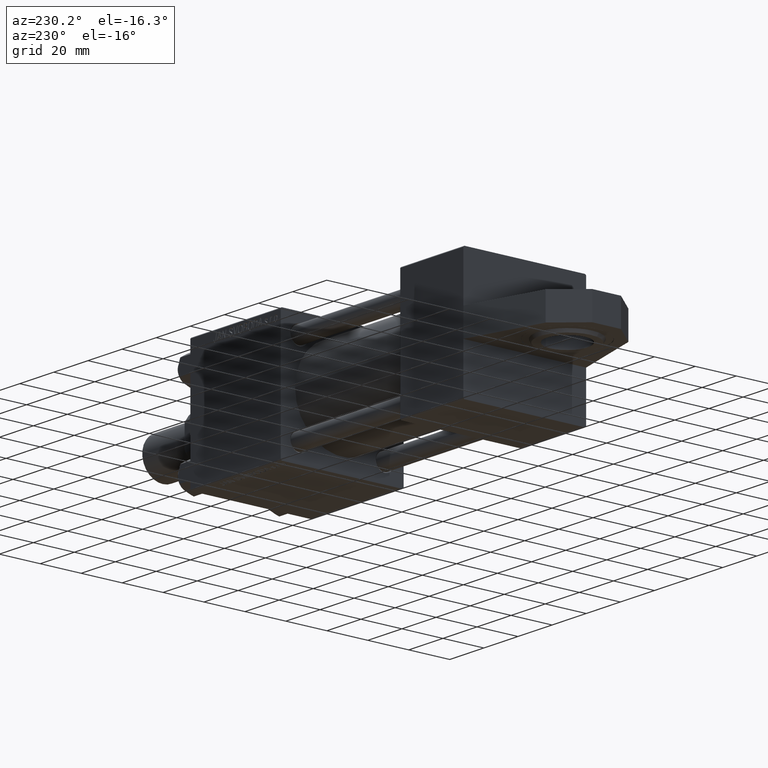
[diagram: clean part render]
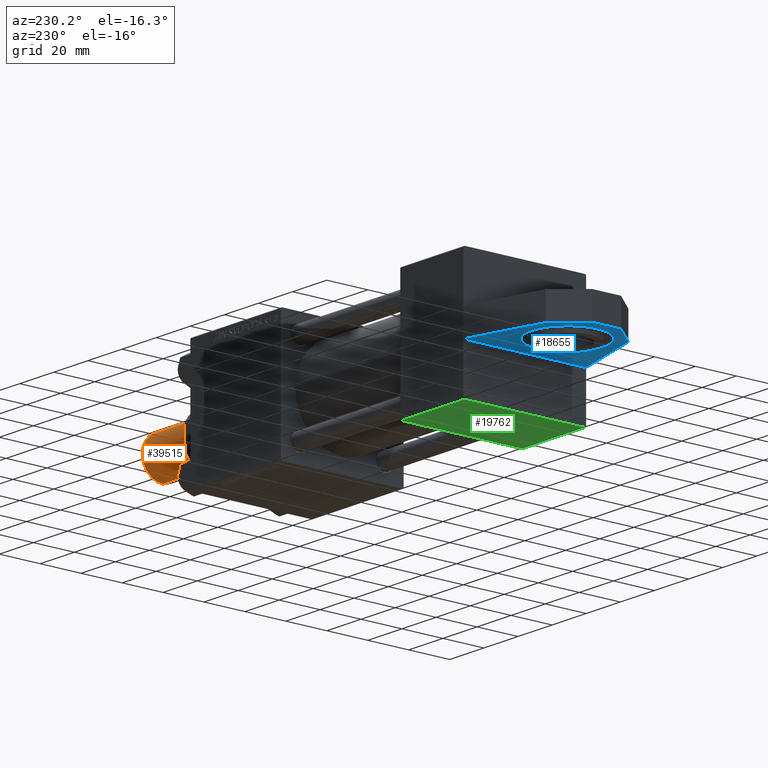
[diagram: same view with three faces highlighted in distinct colors, each labeled with its STEP entity id]
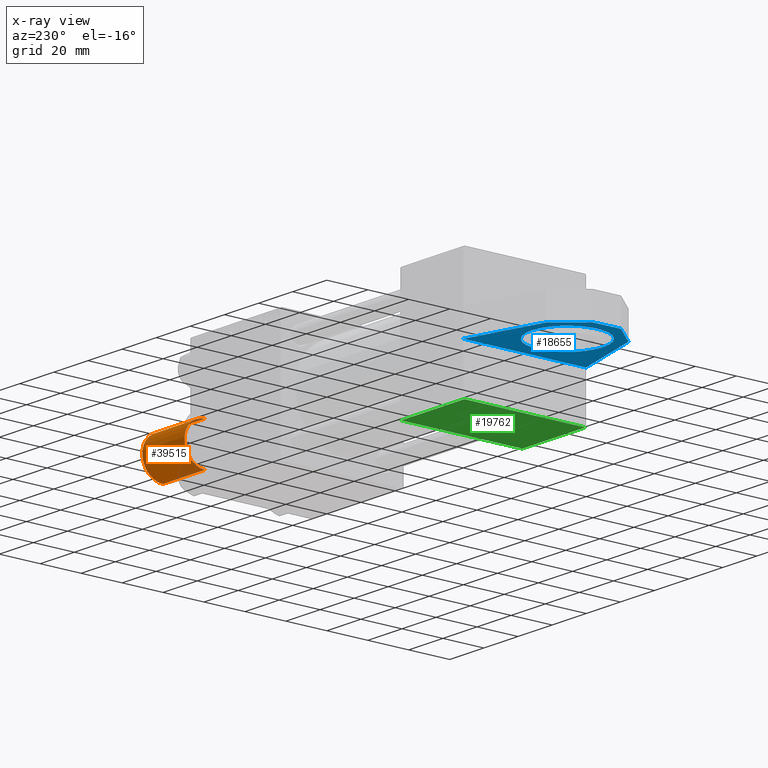
[diagram: x-ray of the same camera — body ghosted, the three highlighted faces saturated]
A machine part, auxiliary view with three faces highlighted in distinct colors.
The next image is the same camera in x-ray (body ghosted, the three faces saturated) — at least one of them is partly hidden behind the body in this view.
Their STEP definitions:

[orange] entity #39515 — the highlighted cylindrical surface (edge-blend (fillet) strip) has radius 10 mm, axis along (1, -0, -0).
#1120 = CARTESIAN_POINT ( 'NONE',  ( 0.000000000000000000, 0.000000000000000000, 25.50000000000000000 ) ) ;
#1680 = EDGE_CURVE ( 'NONE', #29354, #22005, #31114, .T. ) ;
#2759 = CARTESIAN_POINT ( 'NONE',  ( 10.00000000000000000, 1.224646799147353256E-15, 25.50000000000000000 ) ) ;
#4843 = EDGE_CURVE ( 'NONE', #36968, #40124, #8272, .T. ) ;
#4981 = CARTESIAN_POINT ( 'NONE',  ( 0.000000000000000000, 0.000000000000000000, 25.50000000000000000 ) ) ;
#7381 = LINE ( 'NONE', #2759, #15349 ) ;
#8272 = CIRCLE ( 'NONE', #27112, 10.00000000000000000 ) ;
#8326 = DIRECTION ( 'NONE',  ( 0.000000000000000000, 0.000000000000000000, 1.000000000000000000 ) ) ;
#8340 = DIRECTION ( 'NONE',  ( -1.000000000000000000, 0.000000000000000000, 0.000000000000000000 ) ) ;
#11604 = EDGE_CURVE ( 'NONE', #40124, #22005, #28581, .T. ) ;
#12187 = CYLINDRICAL_SURFACE ( 'NONE', #35221, 10.00000000000000000 ) ;
#12936 = DIRECTION ( 'NONE',  ( -0.000000000000000000, -0.000000000000000000, -1.000000000000000000 ) ) ;
#15349 = VECTOR ( 'NONE', #50523, 1000.000000000000000 ) ;
#17321 = VECTOR ( 'NONE', #23973, 1000.000000000000000 ) ;
#18215 = CARTESIAN_POINT ( 'NONE',  ( 10.00000000000000000, 1.224646799147353256E-15, 25.50000000000000000 ) ) ;
#22005 = VERTEX_POINT ( 'NONE', #49097 ) ;
#23973 = DIRECTION ( 'NONE',  ( -0.000000000000000000, -0.000000000000000000, -1.000000000000000000 ) ) ;
#26599 = CARTESIAN_POINT ( 'NONE',  ( -10.00000000000000000, 0.000000000000000000, 25.50000000000000000 ) ) ;
#27112 = AXIS2_PLACEMENT_3D ( 'NONE', #1120, #8326, #32432 ) ;
#27946 = ORIENTED_EDGE ( 'NONE', *, *, #11604, .F. ) ;
#28078 = CARTESIAN_POINT ( 'NONE',  ( -10.00000000000000000, 0.000000000000000000, 25.50000000000000000 ) ) ;
#28198 = ORIENTED_EDGE ( 'NONE', *, *, #1680, .T. ) ;
#28581 = LINE ( 'NONE', #28078, #17321 ) ;
#28788 = EDGE_CURVE ( 'NONE', #36968, #29354, #7381, .T. ) ;
#29296 = DIRECTION ( 'NONE',  ( -0.000000000000000000, -0.000000000000000000, 1.000000000000000000 ) ) ;
#29354 = VERTEX_POINT ( 'NONE', #37974 ) ;
#30271 = AXIS2_PLACEMENT_3D ( 'NONE', #38046, #29296, #33387 ) ;
#31114 = CIRCLE ( 'NONE', #30271, 10.00000000000000000 ) ;
#32432 = DIRECTION ( 'NONE',  ( 1.000000000000000000, 0.000000000000000000, 0.000000000000000000 ) ) ;
#33387 = DIRECTION ( 'NONE',  ( 1.000000000000000000, 0.000000000000000000, 0.000000000000000000 ) ) ;
#34389 = ORIENTED_EDGE ( 'NONE', *, *, #28788, .T. ) ;
#35221 = AXIS2_PLACEMENT_3D ( 'NONE', #4981, #12936, #8340 ) ;
#36968 = VERTEX_POINT ( 'NONE', #18215 ) ;
#37974 = CARTESIAN_POINT ( 'NONE',  ( 10.00000000000000000, 1.224646799147353256E-15, 0.8000000000000055955 ) ) ;
#38046 = CARTESIAN_POINT ( 'NONE',  ( 0.000000000000000000, 0.000000000000000000, 0.8000000000000055955 ) ) ;
#39515 = ADVANCED_FACE ( 'NONE', ( #47616 ), #12187, .T. ) ;
#40124 = VERTEX_POINT ( 'NONE', #26599 ) ;
#43198 = ORIENTED_EDGE ( 'NONE', *, *, #4843, .F. ) ;
#47616 = FACE_OUTER_BOUND ( 'NONE', #48016, .T. ) ;
#48016 = EDGE_LOOP ( 'NONE', ( #43198, #34389, #28198, #27946 ) ) ;
#49097 = CARTESIAN_POINT ( 'NONE',  ( -10.00000000000000000, 0.000000000000000000, 0.8000000000000055955 ) ) ;
#50523 = DIRECTION ( 'NONE',  ( -0.000000000000000000, -0.000000000000000000, -1.000000000000000000 ) ) ;

[blue] entity #18655 — the highlighted planar face has unit normal (0, 0, 1).
#134 = CIRCLE ( 'NONE', #32068, 17.50000000000000355 ) ;
#751 = DIRECTION ( 'NONE',  ( 0.9659258262890672020, 0.000000000000000000, 0.2588190451025247363 ) ) ;
#892 = EDGE_CURVE ( 'NONE', #48113, #46919, #20588, .T. ) ;
#2712 = VECTOR ( 'NONE', #751, 1000.000000000000227 ) ;
#2963 = CARTESIAN_POINT ( 'NONE',  ( -25.00000000000000000, -6.500000000000000000, -6.938893903907228378E-15 ) ) ;
#5178 = CARTESIAN_POINT ( 'NONE',  ( -48.00000000000000000, -6.500000000000000000, -7.000000000000004441 ) ) ;
#5600 = AXIS2_PLACEMENT_3D ( 'NONE', #2963, #16502, #47598 ) ;
#6881 = ORIENTED_EDGE ( 'NONE', *, *, #16418, .F. ) ;
#8710 = CARTESIAN_POINT ( 'NONE',  ( -36.50000000000000711, -6.500000000000000000, 20.21985447626385124 ) ) ;
#10238 = FACE_BOUND ( 'NONE', #37576, .T. ) ;
#10798 = EDGE_CURVE ( 'NONE', #28318, #31298, #134, .T. ) ;
#11111 = DIRECTION ( 'NONE',  ( 0.000000000000000000, 0.000000000000000000, 1.000000000000000000 ) ) ;
#11362 = EDGE_CURVE ( 'NONE', #46919, #39563, #44809, .T. ) ;
#12792 = EDGE_CURVE ( 'NONE', #31798, #36772, #33688, .T. ) ;
#14328 = PLANE ( 'NONE',  #23362 ) ;
#14638 = VECTOR ( 'NONE', #17220, 1000.000000000000114 ) ;
#16418 = EDGE_CURVE ( 'NONE', #39563, #46038, #31057, .T. ) ;
#16502 = DIRECTION ( 'NONE',  ( 0.000000000000000000, 1.000000000000000000, 0.000000000000000000 ) ) ;
#16730 = ORIENTED_EDGE ( 'NONE', *, *, #12792, .F. ) ;
#17220 = DIRECTION ( 'NONE',  ( -0.6563241120553992003, -0.000000000000000000, 0.7544790652726500735 ) ) ;
#17261 = VECTOR ( 'NONE', #34674, 1000.000000000000227 ) ;
#17511 = CARTESIAN_POINT ( 'NONE',  ( 0.000000000000000000, -6.500000000000000000, 29.99999999999999289 ) ) ;
#18655 = ADVANCED_FACE ( 'NONE', ( #10238, #25890 ), #14328, .F. ) ;
#18829 = ORIENTED_EDGE ( 'NONE', *, *, #32665, .T. ) ;
#18986 = LINE ( 'NONE', #23611, #17261 ) ;
#20414 = CARTESIAN_POINT ( 'NONE',  ( -24.99999999999999645, -6.500000000000000000, -17.50000000000001066 ) ) ;
#20588 = LINE ( 'NONE', #25451, #14638 ) ;
#20700 = CARTESIAN_POINT ( 'NONE',  ( -36.50000000000000711, -6.500000000000000000, 20.21985447626385124 ) ) ;
#23362 = AXIS2_PLACEMENT_3D ( 'NONE', #30008, #45675, #26908 ) ;
#23611 = CARTESIAN_POINT ( 'NONE',  ( -36.50000000000000711, -6.500000000000000000, -20.21985447626386545 ) ) ;
#23943 = VECTOR ( 'NONE', #48865, 1000.000000000000000 ) ;
#24118 = VECTOR ( 'NONE', #34662, 1000.000000000000114 ) ;
#25025 = ORIENTED_EDGE ( 'NONE', *, *, #42776, .F. ) ;
#25451 = CARTESIAN_POINT ( 'NONE',  ( -48.00000000000000000, -6.500000000000000000, -7.000000000000004441 ) ) ;
#25890 = FACE_OUTER_BOUND ( 'NONE', #37557, .T. ) ;
#26908 = DIRECTION ( 'NONE',  ( 0.000000000000000000, -0.000000000000000000, 1.000000000000000000 ) ) ;
#28318 = VERTEX_POINT ( 'NONE', #38006 ) ;
#30008 = CARTESIAN_POINT ( 'NONE',  ( 0.000000000000000000, -6.500000000000000000, 0.000000000000000000 ) ) ;
#30361 = DIRECTION ( 'NONE',  ( 0.000000000000000000, 1.000000000000000000, 0.000000000000000000 ) ) ;
#30807 = ORIENTED_EDGE ( 'NONE', *, *, #892, .F. ) ;
#30867 = CARTESIAN_POINT ( 'NONE',  ( -25.00000000000000000, -6.500000000000000000, -6.938893903907228378E-15 ) ) ;
#31057 = LINE ( 'NONE', #39267, #24118 ) ;
#31298 = VERTEX_POINT ( 'NONE', #20414 ) ;
#31798 = VERTEX_POINT ( 'NONE', #33943 ) ;
#32068 = AXIS2_PLACEMENT_3D ( 'NONE', #30867, #30361, #11111 ) ;
#32665 = EDGE_CURVE ( 'NONE', #31298, #28318, #34304, .T. ) ;
#33688 = LINE ( 'NONE', #17511, #23943 ) ;
#33753 = VECTOR ( 'NONE', #37875, 1000.000000000000000 ) ;
#33943 = CARTESIAN_POINT ( 'NONE',  ( 0.000000000000000000, -6.500000000000000000, 29.99999999999999289 ) ) ;
#34304 = CIRCLE ( 'NONE', #5600, 17.50000000000000355 ) ;
#34662 = DIRECTION ( 'NONE',  ( 0.6563241120553993113, 0.000000000000000000, 0.7544790652726499625 ) ) ;
#34674 = DIRECTION ( 'NONE',  ( -0.9659258262890672020, -0.000000000000000000, 0.2588190451025247363 ) ) ;
#36677 = LINE ( 'NONE', #8710, #2712 ) ;
#36772 = VERTEX_POINT ( 'NONE', #38338 ) ;
#37418 = ORIENTED_EDGE ( 'NONE', *, *, #49701, .F. ) ;
#37557 = EDGE_LOOP ( 'NONE', ( #6881, #47924, #30807, #25025, #16730, #37418 ) ) ;
#37576 = EDGE_LOOP ( 'NONE', ( #44630, #18829 ) ) ;
#37614 = CARTESIAN_POINT ( 'NONE',  ( -48.00000000000000000, -6.500000000000000000, -7.000000000000004441 ) ) ;
#37875 = DIRECTION ( 'NONE',  ( 0.000000000000000000, 0.000000000000000000, 1.000000000000000000 ) ) ;
#38006 = CARTESIAN_POINT ( 'NONE',  ( -25.00000000000000000, -6.500000000000000000, 17.49999999999999645 ) ) ;
#38338 = CARTESIAN_POINT ( 'NONE',  ( 0.000000000000000000, -6.499999999999984901, -30.00000000000000355 ) ) ;
#39267 = CARTESIAN_POINT ( 'NONE',  ( -48.00000000000000000, -6.500000000000000000, 6.999999999999995559 ) ) ;
#39563 = VERTEX_POINT ( 'NONE', #48374 ) ;
#42776 = EDGE_CURVE ( 'NONE', #36772, #48113, #18986, .T. ) ;
#44630 = ORIENTED_EDGE ( 'NONE', *, *, #10798, .T. ) ;
#44809 = LINE ( 'NONE', #37614, #33753 ) ;
#45675 = DIRECTION ( 'NONE',  ( -0.000000000000000000, 1.000000000000000000, 0.000000000000000000 ) ) ;
#46038 = VERTEX_POINT ( 'NONE', #20700 ) ;
#46919 = VERTEX_POINT ( 'NONE', #5178 ) ;
#47598 = DIRECTION ( 'NONE',  ( 0.000000000000000000, 0.000000000000000000, 1.000000000000000000 ) ) ;
#47924 = ORIENTED_EDGE ( 'NONE', *, *, #11362, .F. ) ;
#48113 = VERTEX_POINT ( 'NONE', #48511 ) ;
#48374 = CARTESIAN_POINT ( 'NONE',  ( -48.00000000000000000, -6.500000000000000000, 6.999999999999995559 ) ) ;
#48511 = CARTESIAN_POINT ( 'NONE',  ( -36.50000000000000711, -6.500000000000000000, -20.21985447626386545 ) ) ;
#48865 = DIRECTION ( 'NONE',  ( 0.000000000000000000, 0.000000000000000000, -1.000000000000000000 ) ) ;
#49701 = EDGE_CURVE ( 'NONE', #46038, #31798, #36677, .T. ) ;

[green] entity #19762 — the highlighted planar face has unit normal (0, 0, 1).
#749 = VECTOR ( 'NONE', #46197, 1000.000000000000000 ) ;
#1653 = DIRECTION ( 'NONE',  ( 0.000000000000000000, -0.000000000000000000, 1.000000000000000000 ) ) ;
#2121 = EDGE_CURVE ( 'NONE', #37757, #41835, #26913, .T. ) ;
#3198 = DIRECTION ( 'NONE',  ( -1.000000000000000000, 0.000000000000000000, 0.000000000000000000 ) ) ;
#4986 = ORIENTED_EDGE ( 'NONE', *, *, #8276, .T. ) ;
#5486 = EDGE_CURVE ( 'NONE', #8192, #41835, #30566, .T. ) ;
#6287 = ORIENTED_EDGE ( 'NONE', *, *, #2121, .F. ) ;
#6610 = VERTEX_POINT ( 'NONE', #12306 ) ;
#6771 = VECTOR ( 'NONE', #18665, 1000.000000000000000 ) ;
#7410 = CARTESIAN_POINT ( 'NONE',  ( 37.00000000000000000, -30.00000000000000000, 29.99999999999999289 ) ) ;
#7449 = DIRECTION ( 'NONE',  ( 1.000000000000000000, 0.000000000000000000, 0.000000000000000000 ) ) ;
#8192 = VERTEX_POINT ( 'NONE', #42218 ) ;
#8276 = EDGE_CURVE ( 'NONE', #37757, #6610, #27565, .T. ) ;
#12306 = CARTESIAN_POINT ( 'NONE',  ( 0.000000000000000000, -30.00000000000000000, 29.49999999999999289 ) ) ;
#12489 = EDGE_CURVE ( 'NONE', #6610, #8192, #18915, .T. ) ;
#12952 = PLANE ( 'NONE',  #33189 ) ;
#14628 = CARTESIAN_POINT ( 'NONE',  ( 37.00000000000000000, -30.00000000000000000, -29.50000000000001776 ) ) ;
#18665 = DIRECTION ( 'NONE',  ( 0.000000000000000000, 0.000000000000000000, -1.000000000000000000 ) ) ;
#18915 = LINE ( 'NONE', #22273, #6771 ) ;
#19762 = ADVANCED_FACE ( 'NONE', ( #32709 ), #12952, .F. ) ;
#20155 = DIRECTION ( 'NONE',  ( -0.000000000000000000, 1.000000000000000000, 0.000000000000000000 ) ) ;
#22273 = CARTESIAN_POINT ( 'NONE',  ( 0.000000000000000000, -30.00000000000000000, 29.99999999999999289 ) ) ;
#23875 = VECTOR ( 'NONE', #7449, 1000.000000000000000 ) ;
#26508 = ORIENTED_EDGE ( 'NONE', *, *, #12489, .T. ) ;
#26913 = LINE ( 'NONE', #7410, #749 ) ;
#27565 = LINE ( 'NONE', #42983, #47702 ) ;
#30566 = LINE ( 'NONE', #14628, #23875 ) ;
#32709 = FACE_OUTER_BOUND ( 'NONE', #35555, .T. ) ;
#33189 = AXIS2_PLACEMENT_3D ( 'NONE', #40422, #20155, #1653 ) ;
#33215 = ORIENTED_EDGE ( 'NONE', *, *, #5486, .T. ) ;
#35555 = EDGE_LOOP ( 'NONE', ( #26508, #33215, #6287, #4986 ) ) ;
#37757 = VERTEX_POINT ( 'NONE', #41852 ) ;
#39436 = CARTESIAN_POINT ( 'NONE',  ( 37.00000000000000000, -30.00000000000000000, -29.50000000000001776 ) ) ;
#40422 = CARTESIAN_POINT ( 'NONE',  ( 37.00000000000000000, -30.00000000000000000, 29.99999999999999289 ) ) ;
#41835 = VERTEX_POINT ( 'NONE', #39436 ) ;
#41852 = CARTESIAN_POINT ( 'NONE',  ( 37.00000000000000000, -30.00000000000000000, 29.49999999999999289 ) ) ;
#42218 = CARTESIAN_POINT ( 'NONE',  ( 0.000000000000000000, -30.00000000000000000, -29.50000000000001776 ) ) ;
#42983 = CARTESIAN_POINT ( 'NONE',  ( 37.00000000000000000, -30.00000000000000000, 29.49999999999999289 ) ) ;
#46197 = DIRECTION ( 'NONE',  ( 0.000000000000000000, 0.000000000000000000, -1.000000000000000000 ) ) ;
#47702 = VECTOR ( 'NONE', #3198, 1000.000000000000000 ) ;